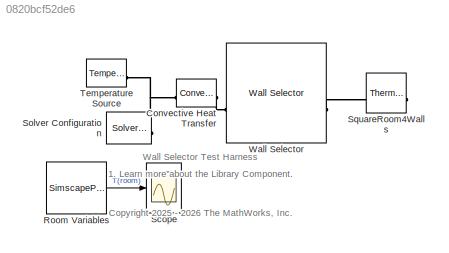
MODEL slx_0820bcf52de6
KIND model
CONFIG AbsTol = 1e-3
CONFIG EnableMultiTasking = off
CONFIG FixedStep = 3600
CONFIG MaxStep = 3
CONFIG MinStep = auto
CONFIG PreLoadFcn = WallModelParams
CONFIG RelTol = 1e-3
CONFIG SampleTimeConstraint = Unconstrained
CONFIG SolverName = daessc
CONFIG StartTime = 0.0
CONFIG StopTime = 7200
BLOCK [Reference] Convective Heat Transfer  REF=fl_lib/Thermal/Thermal Elements/Convective Heat
Transfer
  SourceBlock = fl_lib/Thermal/Thermal Elements/Convective Heat\nTransfer
  SourceType = Convective Heat\nTransfer
BLOCK [SimscapeProbe] Room Variables
  BoundBlock = 26
  Variables = {T}
BLOCK [Scope] Scope
  ActiveDisplayYMaximum = 300.00062
  ActiveDisplayYMinimum = 299.99993
  Floating = off
  GraphicalSettings = {"GraphicalSettings":{"LegacySettings":true,"Style":{"AxesScalingProperties":{"ScaleAxesLimitsAtStop":false},"Style":{"AxesColor":"[0 0 0]","ChannelNames":[""],"ColorOrder":"[1 0.909803921568627 0.392156862745098;0.149019607843137 0.549019607843137 0.866666666666667;0.96078431372549 0.466666666666667 0.16078431372549;0.286274509803922 0.858823529411765 0.250980392156863;0.752941176470588 0.3607843...<+513ch>
  MultipleDisplayCache = [{"MaxYLimMag":300.00062,"MaxYLimReal":300.00062,"MinYLimMag":299.99993,"MinYLimReal":299.99993,"PlotAsMagnitudePhase":false,"ShowGrid":true,"ShowLegend":false,"Title":"%<SignalLabel>","YLabel":""}]
  NumInputPorts = 1
  WasSavedAsWebScope = on
  WindowPosition = [912 402 306 399]
BLOCK [Reference] Solver Configuration  REF=nesl_utility/Solver
Configuration
  NameLocation = left
  SourceBlock = nesl_utility/Solver\nConfiguration
  SourceType = Solver\nConfiguration
BLOCK [Reference] SquareRoom4Walls  REF=fl_lib/Thermal/Thermal Elements/Thermal Mass
  SourceBlock = fl_lib/Thermal/Thermal Elements/Thermal Mass
  SourceType = Thermal Mass
BLOCK [Reference] Temperature Source  REF=fl_lib/Thermal/Thermal Sources/Temperature Source
  SourceBlock = fl_lib/Thermal/Thermal Sources/Temperature Source
  SourceType = Temperature Source
BLOCK [Reference] Wall Selector  REF=WallSelector_lib/Wall Selector
  SourceBlock = WallSelector_lib/Wall Selector
  SourceType = Wall Selector
ANNOTATION (root): 1. Learn more about the Library Component.
ANNOTATION (root): <copyright redacted>
ANNOTATION (root): Wall Selector Test Harness
LINE Room Variables:1 -> Scope:1
PNET net1: Convective Heat Transfer:LConn1 -- Solver Configuration:RConn1 -- Temperature Source:LConn1
PLINE Convective Heat Transfer:RConn1 -- Wall Selector:LConn1
PLINE SquareRoom4Walls:LConn1 -- Wall Selector:RConn1
note: PNET lines group multi-terminal physical nets as a canonical sorted terminal list (undirected conserving connections); 2-terminal nets keep the pairwise PLINE form
